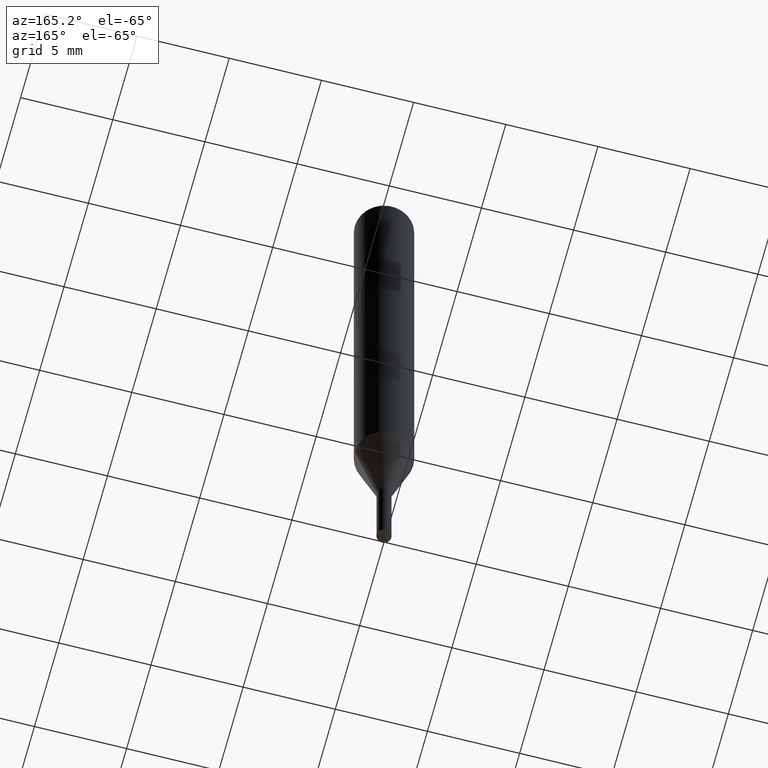
[diagram: clean part render]
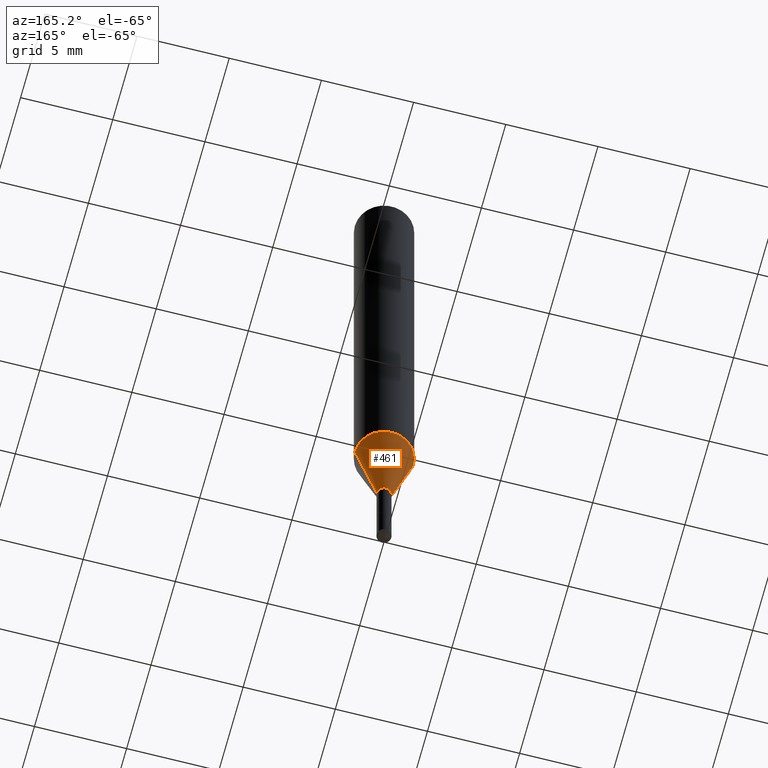
[diagram: same view with one face highlighted and labeled with its STEP entity id]
A machine part, auxiliary view. The second image highlights one B-rep face of the part: STEP entity #461.
In plain terms, the highlighted conical surface has half-angle 15 deg.
Its self-contained STEP definition (entity closure, byte-faithful):
#22 = CARTESIAN_POINT ( 'NONE',  ( 0.01559999999999998367, -4.615040033682871428E-15, -1.290600000000000414 ) ) ;
#45 = VECTOR ( 'NONE', #446, 39.37007874015748854 ) ;
#75 = CARTESIAN_POINT ( 'NONE',  ( 0.01559999999999998367, -4.615040033682871428E-15, -1.290600000000000414 ) ) ;
#81 = CONICAL_SURFACE ( 'NONE', #191, 0.01559999999999998367, 0.2617993877991499629 ) ;
#82 = FACE_OUTER_BOUND ( 'NONE', #344, .T. ) ;
#96 = VECTOR ( 'NONE', #302, 39.37007874015748854 ) ;
#102 = ORIENTED_EDGE ( 'NONE', *, *, #308, .F. ) ;
#130 = AXIS2_PLACEMENT_3D ( 'NONE', #200, #383, #352 ) ;
#164 = EDGE_CURVE ( 'NONE', #364, #400, #326, .T. ) ;
#191 = AXIS2_PLACEMENT_3D ( 'NONE', #314, #277, #473 ) ;
#195 = CARTESIAN_POINT ( 'NONE',  ( 0.06250000000000015266, -4.331415891580043857E-15, -1.115566817125019927 ) ) ;
#200 = CARTESIAN_POINT ( 'NONE',  ( 2.728083852494474973E-29, -3.894980724224650610E-15, -1.115566817125019927 ) ) ;
#229 = CARTESIAN_POINT ( 'NONE',  ( -0.01559999999999998367, -4.602829714726614675E-15, -1.290600000000000414 ) ) ;
#232 = AXIS2_PLACEMENT_3D ( 'NONE', #234, #341, #459 ) ;
#234 = CARTESIAN_POINT ( 'NONE',  ( 3.156122041262538513E-29, -4.506105815910965661E-15, -1.290600000000000414 ) ) ;
#250 = VERTEX_POINT ( 'NONE', #22 ) ;
#277 = DIRECTION ( 'NONE',  ( -2.445468806185136597E-29, 3.491481338843145583E-15, 1.000000000000000000 ) ) ;
#302 = DIRECTION ( 'NONE',  ( 0.2588190451025212391, 1.565188264969622362E-15, 0.9659258262890679791 ) ) ;
#308 = EDGE_CURVE ( 'NONE', #250, #358, #385, .T. ) ;
#314 = CARTESIAN_POINT ( 'NONE',  ( 3.156122041262538513E-29, -4.506105815910965661E-15, -1.290600000000000414 ) ) ;
#317 = ORIENTED_EDGE ( 'NONE', *, *, #360, .F. ) ;
#326 = LINE ( 'NONE', #378, #45 ) ;
#341 = DIRECTION ( 'NONE',  ( -2.445468806185136597E-29, 3.491481338843145583E-15, 1.000000000000000000 ) ) ;
#344 = EDGE_LOOP ( 'NONE', ( #368, #345, #317, #102 ) ) ;
#345 = ORIENTED_EDGE ( 'NONE', *, *, #164, .T. ) ;
#352 = DIRECTION ( 'NONE',  ( 1.000000000000000000, -6.982962677686270655E-15, 0.000000000000000000 ) ) ;
#358 = VERTEX_POINT ( 'NONE', #195 ) ;
#360 = EDGE_CURVE ( 'NONE', #358, #400, #391, .T. ) ;
#364 = VERTEX_POINT ( 'NONE', #229 ) ;
#368 = ORIENTED_EDGE ( 'NONE', *, *, #435, .T. ) ;
#378 = CARTESIAN_POINT ( 'NONE',  ( -0.01559999999999998367, -4.395261149132390407E-15, -1.290600000000000414 ) ) ;
#383 = DIRECTION ( 'NONE',  ( -2.445468806185136597E-29, 3.491481338843145583E-15, 1.000000000000000000 ) ) ;
#385 = LINE ( 'NONE', #75, #96 ) ;
#391 = CIRCLE ( 'NONE', #130, 0.06250000000000013878 ) ;
#400 = VERTEX_POINT ( 'NONE', #427 ) ;
#427 = CARTESIAN_POINT ( 'NONE',  ( -0.06250000000000015266, -3.450891514374587205E-15, -1.115566817125019927 ) ) ;
#435 = EDGE_CURVE ( 'NONE', #250, #364, #449, .T. ) ;
#446 = DIRECTION ( 'NONE',  ( -0.2588190451025212391, 5.211531920934549464E-15, 0.9659258262890679791 ) ) ;
#449 = CIRCLE ( 'NONE', #232, 0.01559999999999998367 ) ;
#459 = DIRECTION ( 'NONE',  ( 1.000000000000000000, -6.982962677686290376E-15, 0.000000000000000000 ) ) ;
#461 = ADVANCED_FACE ( 'NONE', ( #82 ), #81, .T. ) ;
#473 = DIRECTION ( 'NONE',  ( 1.000000000000000000, -6.982962677686290376E-15, 0.000000000000000000 ) ) ;